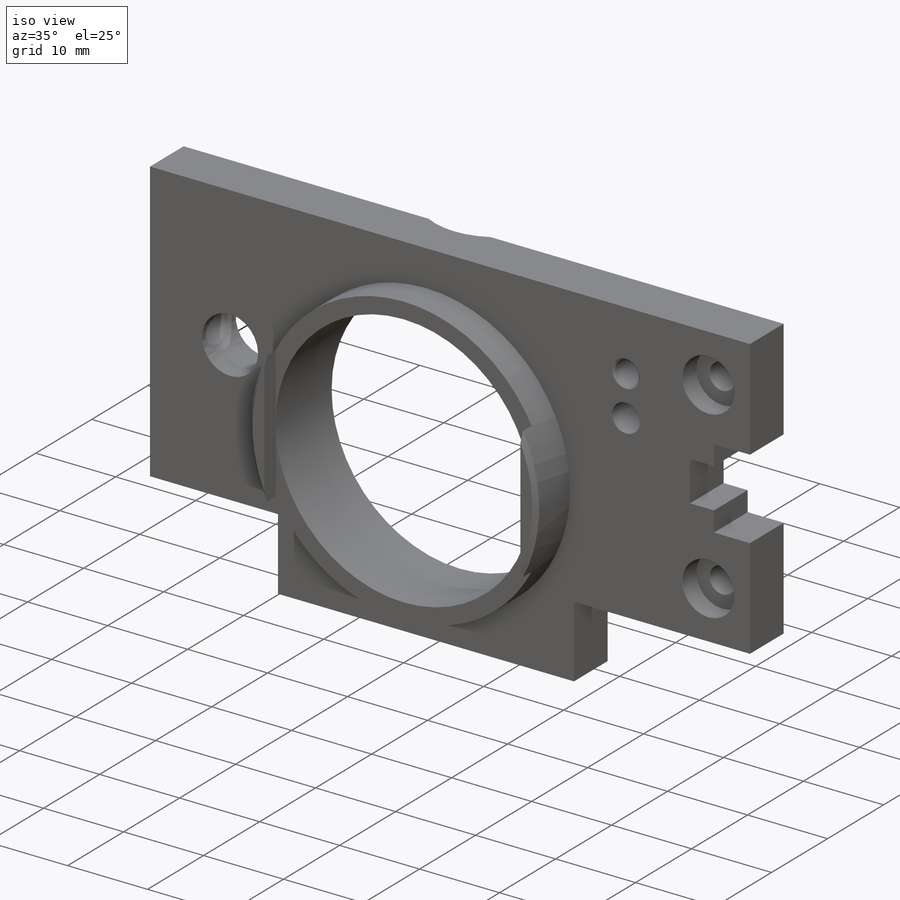
[diagram: iso view]
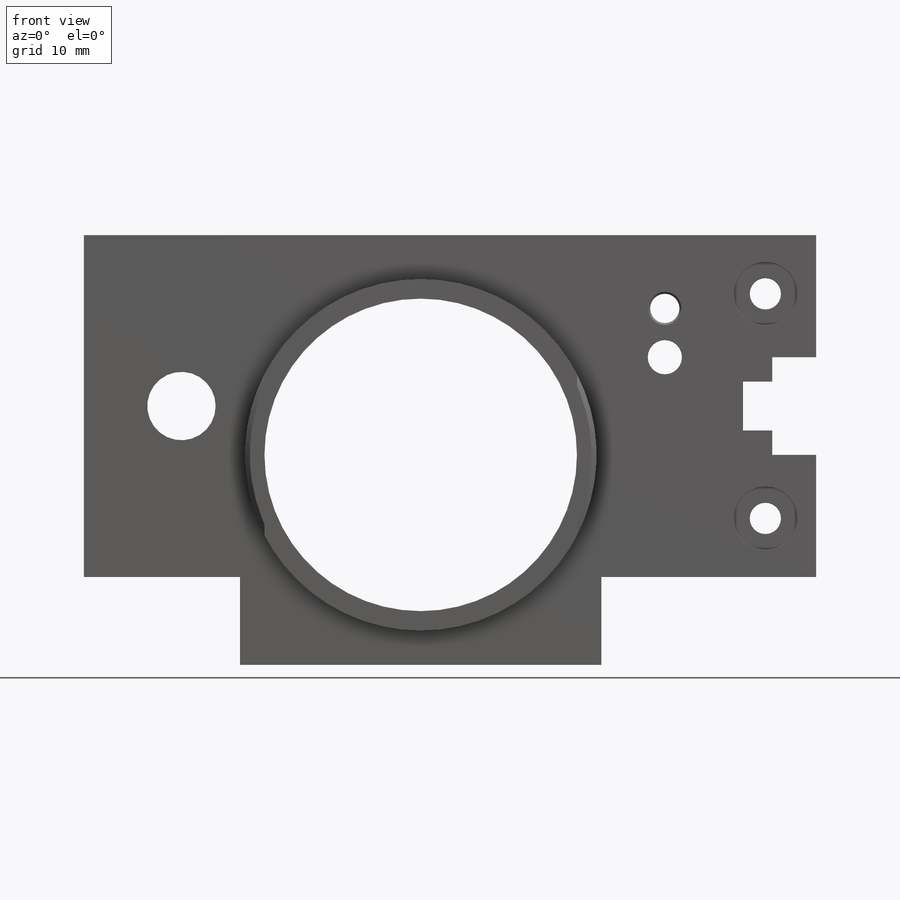
[diagram: front view]
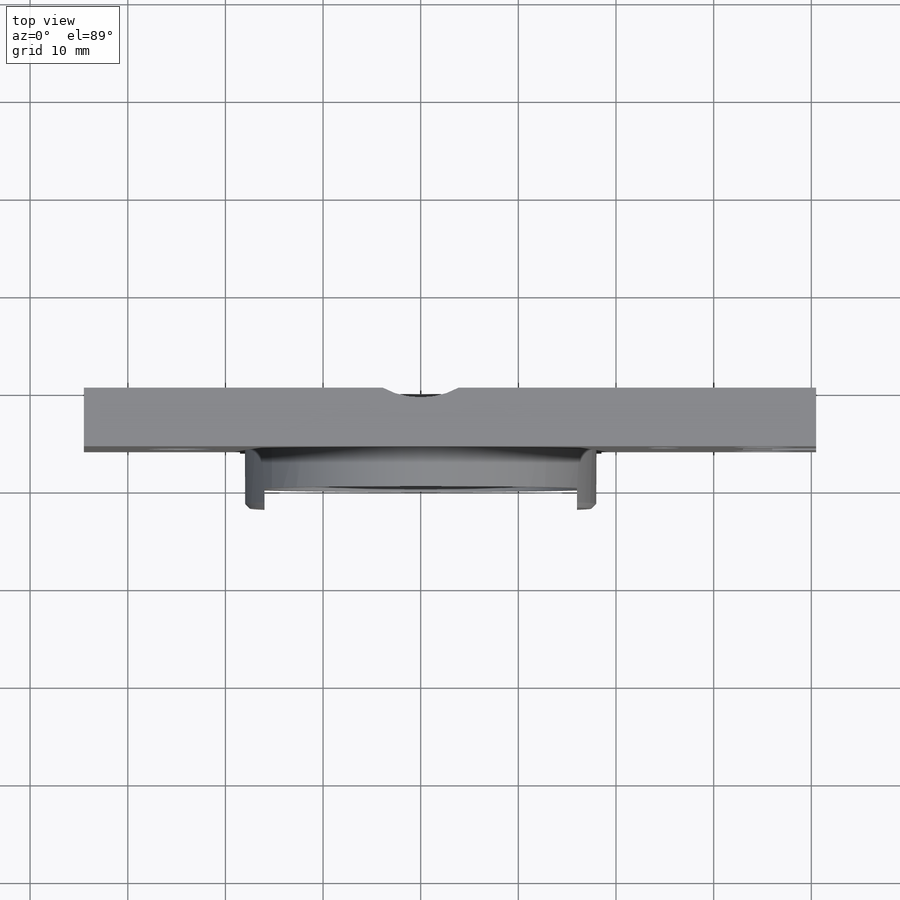
[diagram: top view]
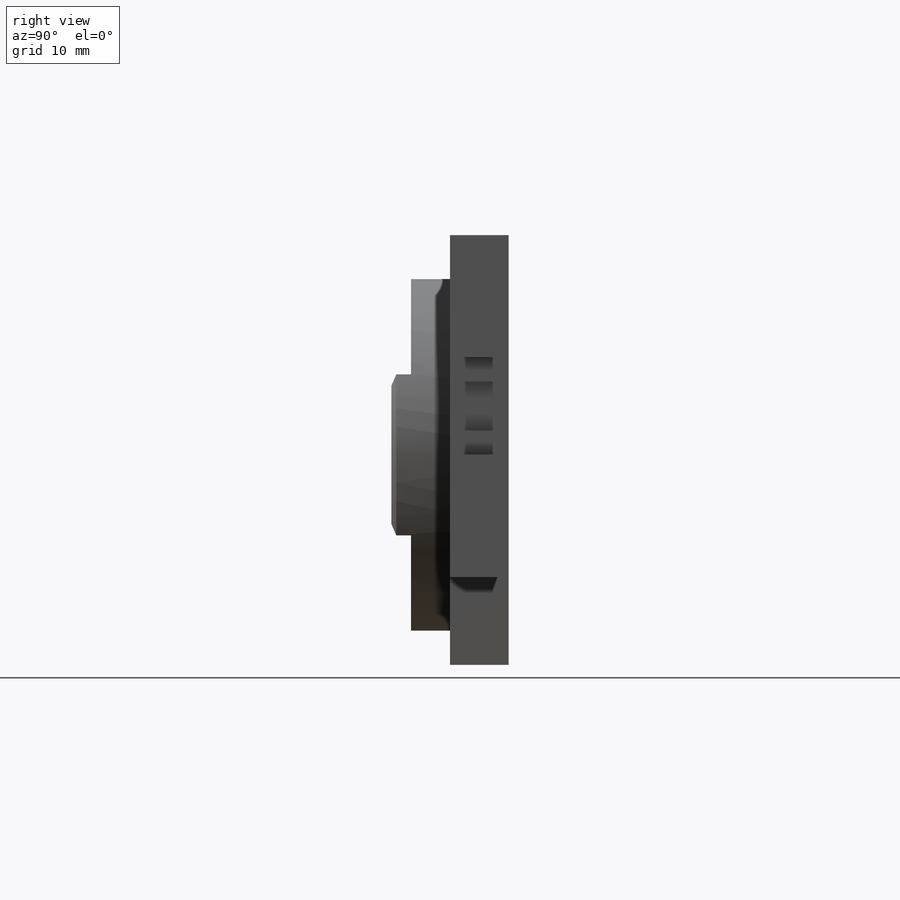
[diagram: right view]
SOLIDWORKS PART (.sldprt)
format: sldprt  version: not decoded by parser v0  size: 514,560 bytes
history: native  units: mm
features: sketch x15, cut_extrude x6, hole x4, material x1, extrude x1, chamfer x1 (+14 scaffold rows collapsed)
feature tree (42):
  scaffold x14  (default folders/planes/origin — collapsed)
  material  "2024-T4"
  sketch  "Эскиз1"  dims[c1.D6=~34.699166mm c1.D7=~34.699166mm c1.D8=32.0mm c1.D1=75.0mm c1.D2=35.0mm c1.D3=37.0mm c1.D4=16.0mm c1.D5=12.0mm c2.D6=22.5mm c2.D7=34.5mm c2.D9=14.0mm c2.D10=27.5mm c3.D9=25.0mm c3.D10=22.0mm c3.D11=2.0mm c3.D5=44.0mm]
  extrude  "Бобышка-Вытянуть1"  Depth=12mm
  sketch  "Эскиз3"  dims[D1=44.0mm D2=36.0mm]
  cut_extrude  "Вырез-Вытянуть2"  Depth=6mm
  sketch  "Эскиз4"  dims[D1=32.0mm]
  cut_extrude  "Вырез-Вытянуть5"  Depth=2mm
  sketch  "Эскиз5"  dims[D2=8.0mm D1=1.0mm]
  cut_extrude  "Вырез-Вытянуть6"  [1 undecoded]
  hole  "Цековка для  M3"  [1 undecoded]
  sketch  "Эскиз8"  dims[c1.D2=36.0mm c1.D3=36.0mm c1.D1=23.0mm c2.D2=35.0mm c2.D3=6.5mm c3.D2=35.3mm c3.D3=6.5mm]
  sketch  "Эскиз7"  dims[hole-wizard template sketch: 28 standard entries collapsed; hole parameters kept: c8.Диаметр сквозного отверстия=3.2mm c8.Глубина сквозного отверстия=6.0mm c8.Диаметр цековки=6.5mm c8.Глубина цековки=2.5mm c8.Диаметр передней зенковки=6.55mm c8.D6=~4.444873mm c8.Угол передней зенковки=90.0deg c8.Диаметр средней зенковки=3.25mm c8.D8=~4.444873mm c8.Угол средней зенковки=90.0deg c8.Диаметр задней зенковки=3.25mm c8.D10=~8.980256mm c8.Угол задней зенковки=90.0deg]
  hole  "M3_1"  [1 undecoded]
  sketch  "Эскиз10"  dims[D1=26.0mm D2=3.0mm D3=13.5mm]
  sketch  "Эскиз9"  dims[hole-wizard template sketch: 27 standard entries collapsed; hole parameters kept: c8.Глубина сверла=11.5mm c8.Диаметр резьбы=3.0mm c8.Глубина резьбы=9.0mm c8.Диаметр передней зенковки=3.2mm c8.D6=~4.399409mm c8.Угол передней зенковки=90.0deg c8.D7=~14.816244mm c8.Угол заточки сверла=118.0deg]
  sketch  "Эскиз11"  dims[c1.D1=7.0mm c1.D2=7.0mm c1.D3=7.0mm c2.D2=10.0mm c2.D3=5.0mm]
  cut_extrude  "Вырез-Вытянуть8"  [1 undecoded]
  sketch  "Эскиз12"  dims[D1=5.0mm D2=10.0mm D3=4.5mm D4=5.0mm D5=3.0mm]
  cut_extrude  "Вырез-Вытянуть9"  [1 undecoded]
  hole  "M4"  [1 undecoded]
  sketch  "Эскиз14"  dims[D1=3.0mm]
  sketch  "Эскиз13"  dims[hole-wizard template sketch: 46 standard entries collapsed; hole parameters kept: c15.Диаметр резьбы=4.0mm c15.Глубина проходного сверла=6.5mm c15.Диаметр передней зенковки=4.55mm c15.D4=~3.666174mm c15.Угол передней зенковки=90.0deg c15.Диаметр задней зенковки=4.55mm c15.D6=~9.919017mm c15.Угол задней зенковки=90.0deg]
  sketch  "Эскиз15"  dims[c1.D1=3.5mm c1.D2=5.0mm c1.D3=5.0mm c2.D2=25.0mm c2.D3=10.0mm]
  cut_extrude  "Вырез-Вытянуть10"  [1 undecoded]
  hole  "M3_2"  [1 undecoded]
  sketch  "Эскиз17"  dims[D1=5.0mm]
  sketch  "Эскиз16"  dims[hole-wizard template sketch: 47 standard entries collapsed; hole parameters kept: c15.Глубина проходного сверла=6.0mm c15.Диаметр передней зенковки=3.4mm c15.D4=~3.666174mm c15.Угол передней зенковки=90.0deg c15.Диаметр задней зенковки=3.4mm c15.D6=~9.919017mm c15.Угол задней зенковки=90.0deg]
  chamfer  "Фаска1"  Distance=0.5mm Angle=45deg
decode coverage: 19 of 27 modeling features carry decoded parameters
note: ~ marks probable driven/reference dimensions
note: 8 parameter values undecoded
summary: no parameter record found for 8 features
note: suppression state not decoded; provenance and decode notes live in map.json
